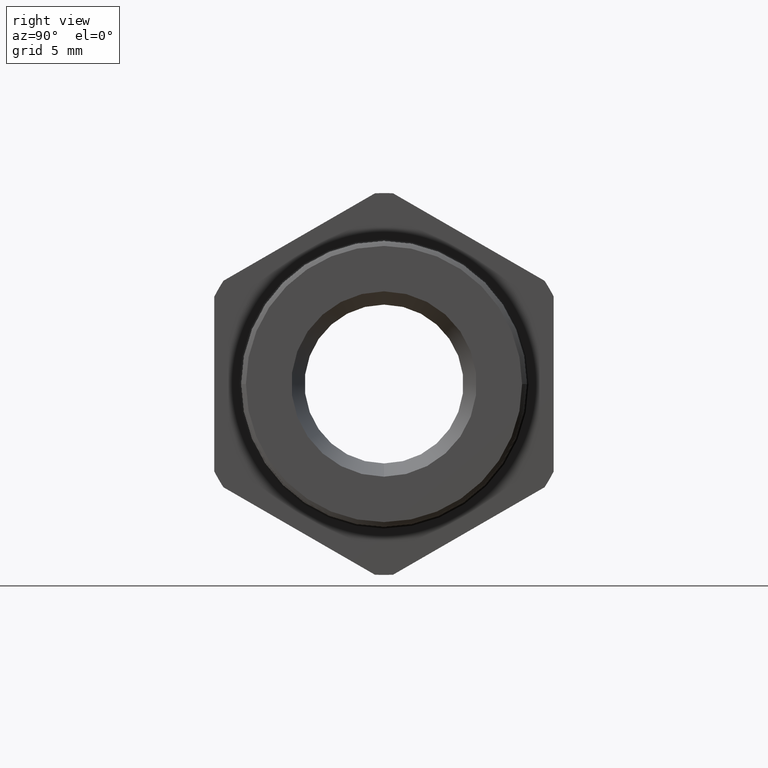
[diagram: clean part render]
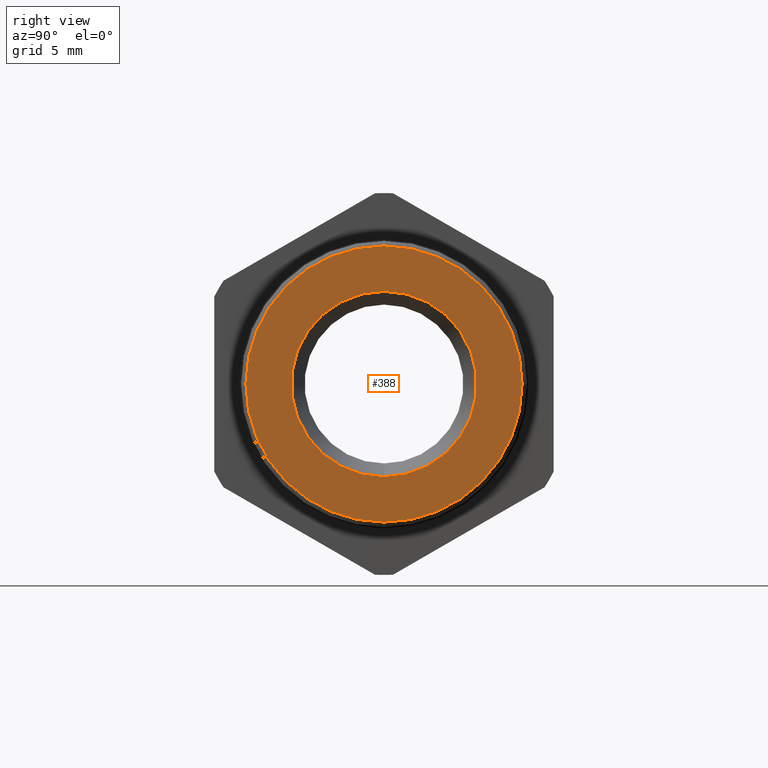
[diagram: same view with one face highlighted and labeled with its STEP entity id]
A machine part, right view. The second image highlights one B-rep face of the part: STEP entity #388.
In plain terms, the highlighted planar face has unit normal (-1, 0, 0).
Its self-contained STEP definition (entity closure, byte-faithful):
#6 = VERTEX_POINT ( 'NONE', #916 ) ;
#11 = VERTEX_POINT ( 'NONE', #910 ) ;
#38 = EDGE_CURVE ( 'NONE', #11, #6, #982, .T. ) ;
#379 = EDGE_LOOP ( 'NONE', ( #380, #405 ) ) ;
#380 = ORIENTED_EDGE ( 'NONE', *, *, #541, .T. ) ;
#382 = ORIENTED_EDGE ( 'NONE', *, *, #38, .T. ) ;
#383 = EDGE_CURVE ( 'NONE', #6, #11, #1491, .T. ) ;
#384 = ORIENTED_EDGE ( 'NONE', *, *, #383, .T. ) ;
#385 = EDGE_LOOP ( 'NONE', ( #382, #384 ) ) ;
#386 = EDGE_CURVE ( 'NONE', #539, #520, #1557, .T. ) ;
#388 = ADVANCED_FACE ( 'NONE', ( #1553, #1552 ), #1551, .F. ) ;
#405 = ORIENTED_EDGE ( 'NONE', *, *, #386, .T. ) ;
#520 = VERTEX_POINT ( 'NONE', #1778 ) ;
#539 = VERTEX_POINT ( 'NONE', #1846 ) ;
#541 = EDGE_CURVE ( 'NONE', #520, #539, #1844, .T. ) ;
#910 = CARTESIAN_POINT ( 'NONE',  ( 6.829619984160658000E-017, 0.3824614872482958200, 0.0000000000000000000 ) ) ;
#916 = CARTESIAN_POINT ( 'NONE',  ( 6.829619984160658000E-017, -0.3824614872482960400, 4.683802361557619000E-017 ) ) ;
#974 = DIRECTION ( 'NONE',  ( 0.0000000000000000000, 0.0000000000000000000, 1.000000000000000000 ) ) ;
#975 = DIRECTION ( 'NONE',  ( 1.000000000000000000, 0.0000000000000000000, 0.0000000000000000000 ) ) ;
#976 = CARTESIAN_POINT ( 'NONE',  ( 6.829619984160658000E-017, -5.729240203396354700E-017, 2.557633562515527100E-017 ) ) ;
#977 = AXIS2_PLACEMENT_3D ( 'NONE', #976, #975, #974 ) ;
#982 = CIRCLE ( 'NONE', #977, 0.3824614872482959800 ) ;
#1489 = CARTESIAN_POINT ( 'NONE',  ( 6.829619984160658000E-017, -5.729240203396354700E-017, 2.557633562515527100E-017 ) ) ;
#1490 = AXIS2_PLACEMENT_3D ( 'NONE', #1489, #1559, #1558 ) ;
#1491 = CIRCLE ( 'NONE', #1490, 0.3824614872482959800 ) ;
#1492 = CARTESIAN_POINT ( 'NONE',  ( 6.829619984160658000E-017, 0.0000000000000000000, 0.0000000000000000000 ) ) ;
#1547 = DIRECTION ( 'NONE',  ( 0.0000000000000000000, 0.0000000000000000000, 1.000000000000000000 ) ) ;
#1548 = DIRECTION ( 'NONE',  ( -1.000000000000000000, 0.0000000000000000000, 0.0000000000000000000 ) ) ;
#1549 = CARTESIAN_POINT ( 'NONE',  ( 6.855208619606633800E-017, 0.3908349274507847400, 0.0000000000000000000 ) ) ;
#1550 = AXIS2_PLACEMENT_3D ( 'NONE', #1549, #1548, #1547 ) ;
#1551 = PLANE ( 'NONE',  #1550 ) ;
#1552 = FACE_BOUND ( 'NONE', #379, .T. ) ;
#1553 = FACE_OUTER_BOUND ( 'NONE', #385, .T. ) ;
#1554 = DIRECTION ( 'NONE',  ( 0.0000000000000000000, 0.0000000000000000000, 1.000000000000000000 ) ) ;
#1555 = DIRECTION ( 'NONE',  ( -1.000000000000000000, 0.0000000000000000000, 0.0000000000000000000 ) ) ;
#1556 = AXIS2_PLACEMENT_3D ( 'NONE', #1492, #1555, #1554 ) ;
#1557 = CIRCLE ( 'NONE', #1556, 0.2567115762703431300 ) ;
#1558 = DIRECTION ( 'NONE',  ( 0.0000000000000000000, 0.0000000000000000000, 1.000000000000000000 ) ) ;
#1559 = DIRECTION ( 'NONE',  ( 1.000000000000000000, 0.0000000000000000000, 0.0000000000000000000 ) ) ;
#1778 = CARTESIAN_POINT ( 'NONE',  ( 6.829619984160658000E-017, 0.0000000000000000000, -0.2567115762703431300 ) ) ;
#1840 = DIRECTION ( 'NONE',  ( 0.0000000000000000000, 0.0000000000000000000, 1.000000000000000000 ) ) ;
#1841 = DIRECTION ( 'NONE',  ( -1.000000000000000000, 0.0000000000000000000, 0.0000000000000000000 ) ) ;
#1842 = CARTESIAN_POINT ( 'NONE',  ( 6.829619984160658000E-017, 0.0000000000000000000, 0.0000000000000000000 ) ) ;
#1843 = AXIS2_PLACEMENT_3D ( 'NONE', #1842, #1841, #1840 ) ;
#1844 = CIRCLE ( 'NONE', #1843, 0.2567115762703431300 ) ;
#1846 = CARTESIAN_POINT ( 'NONE',  ( 6.829619984160658000E-017, 3.143810101835473800E-017, 0.2567115762703431300 ) ) ;